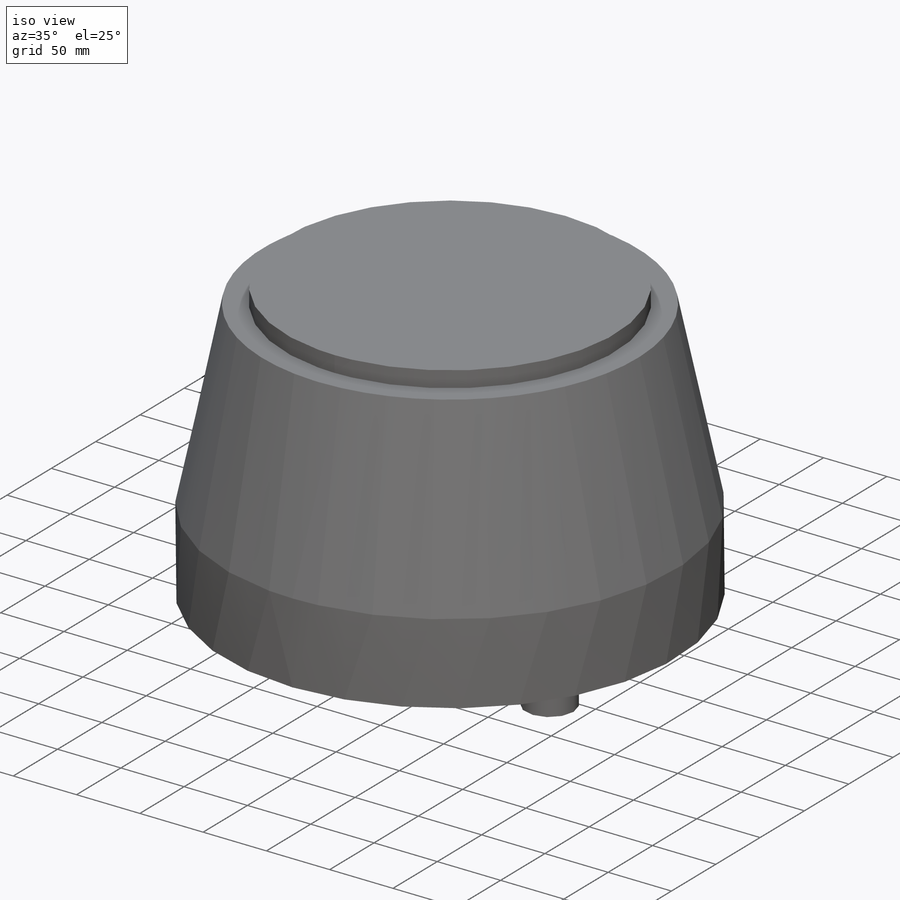
[diagram: iso view]
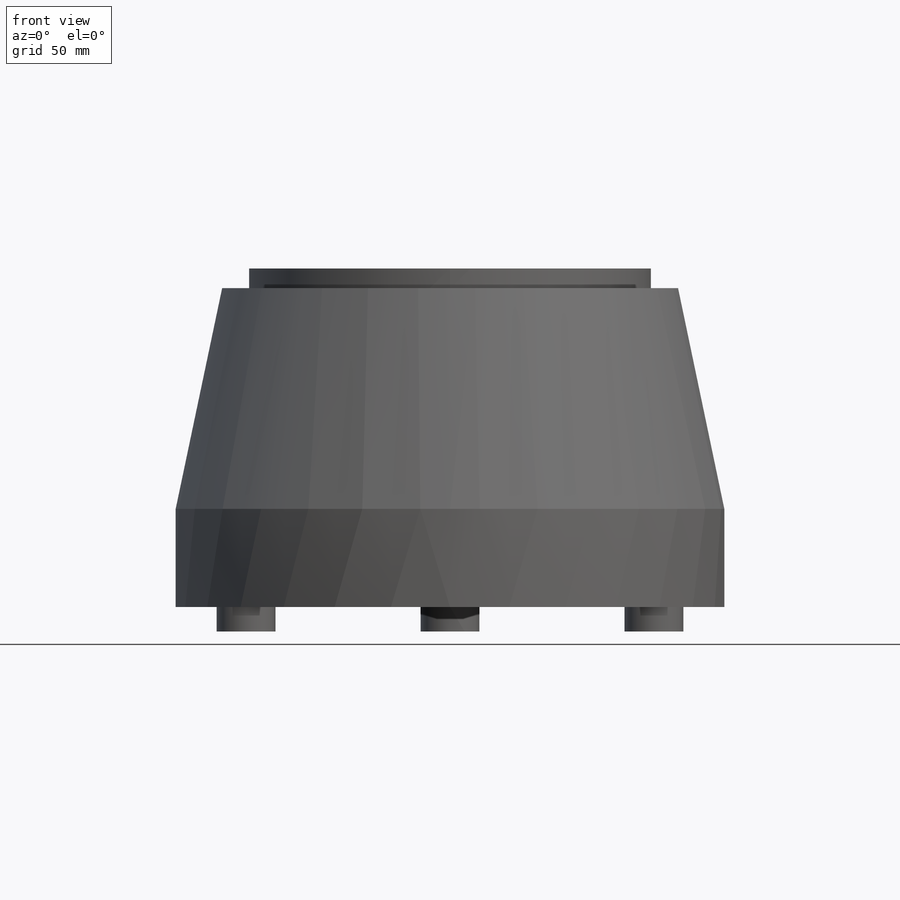
[diagram: front view]
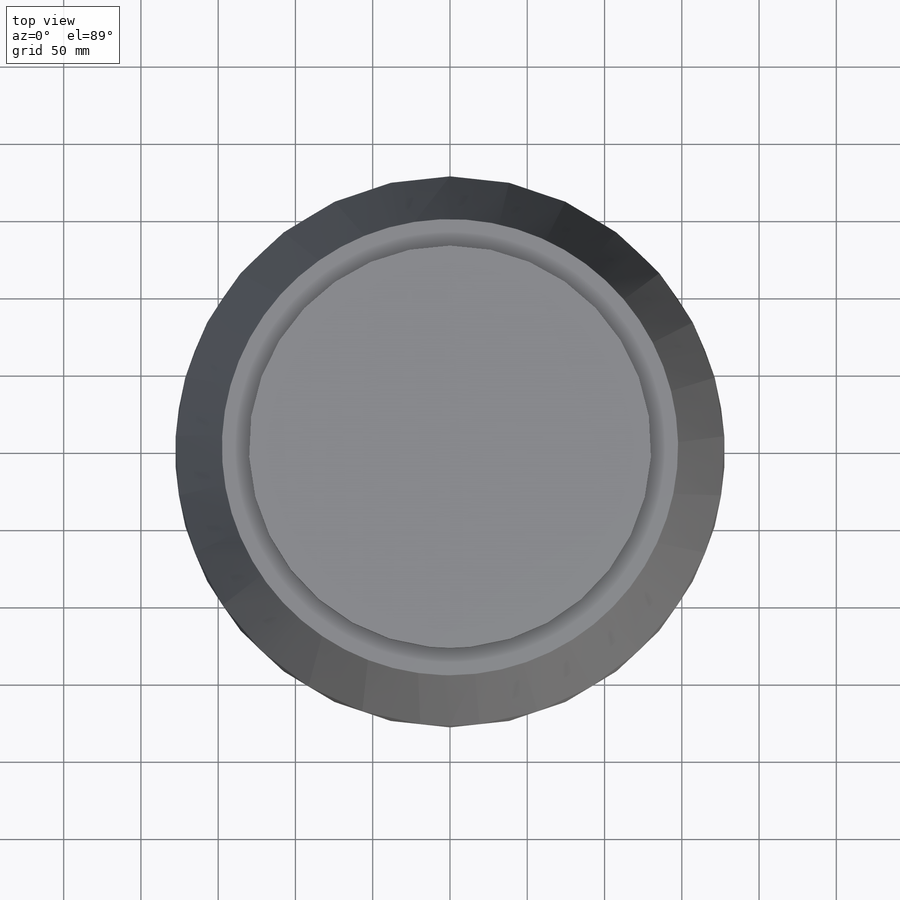
[diagram: top view]
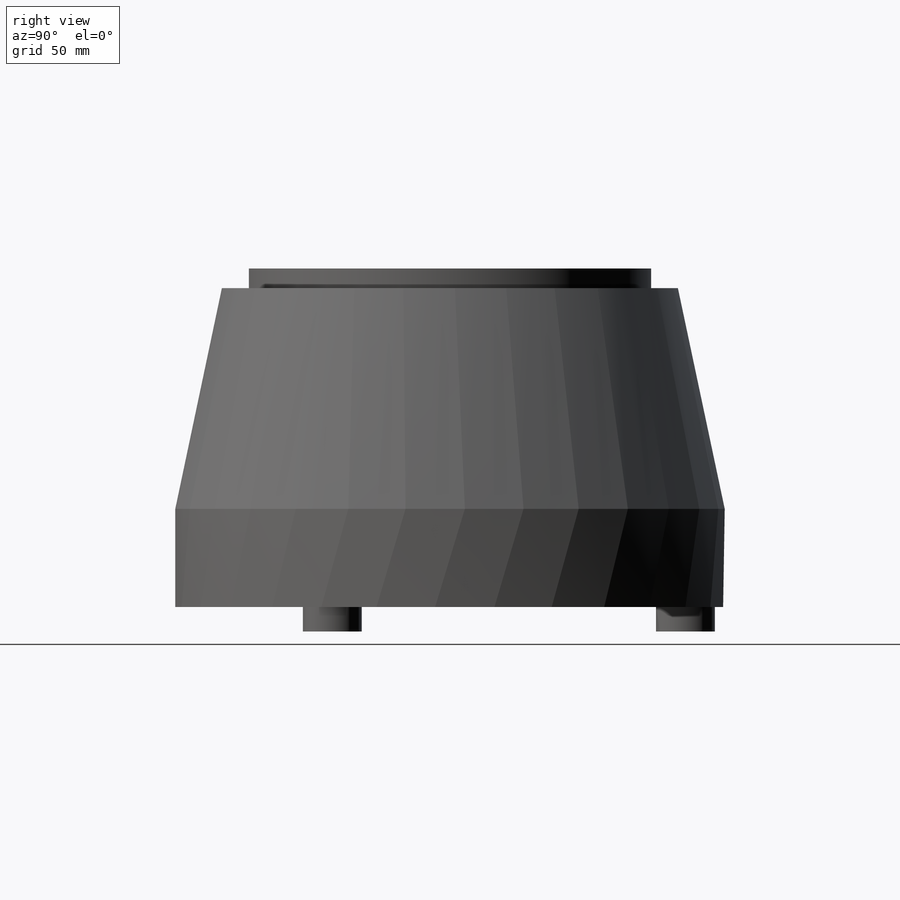
[diagram: right view]
SOLIDWORKS PART (.sldprt)
format: sldprt  version: not decoded by parser v0  size: 221,184 bytes
history: native  units: mm
features: sketch x5, extrude x3, material x1, plane x1, pattern_circular x1 (+14 scaffold rows collapsed)
feature tree (25):
  scaffold x14  (default folders/planes/origin — collapsed)
  material  "Material <not specified>"
  sketch  "Sketch1"  dims[D1=260.35mm]
  extrude  "Extrude1"  Depth=12.7mm
  plane  "Plane1"  Offset=142.875mm
  sketch  "Sketch2"  dims[D1=295.275mm]
  sketch  "Sketch3"  dims[D1=355.6mm]
  sketch  "Sketch4"  dims[D1=355.6mm]
  extrude  "Extrude2"  Depth=63.5mm
  sketch  "Sketch5"  dims[D2=38.1mm D1=152.4mm]
  extrude  "Extrude3"  Depth=15.875mm
  pattern_circular  "CirPattern1"  Count=3 Angle=360deg
decode coverage: 9 of 9 modeling features carry decoded parameters
note: suppression state not decoded; provenance and decode notes live in map.json
